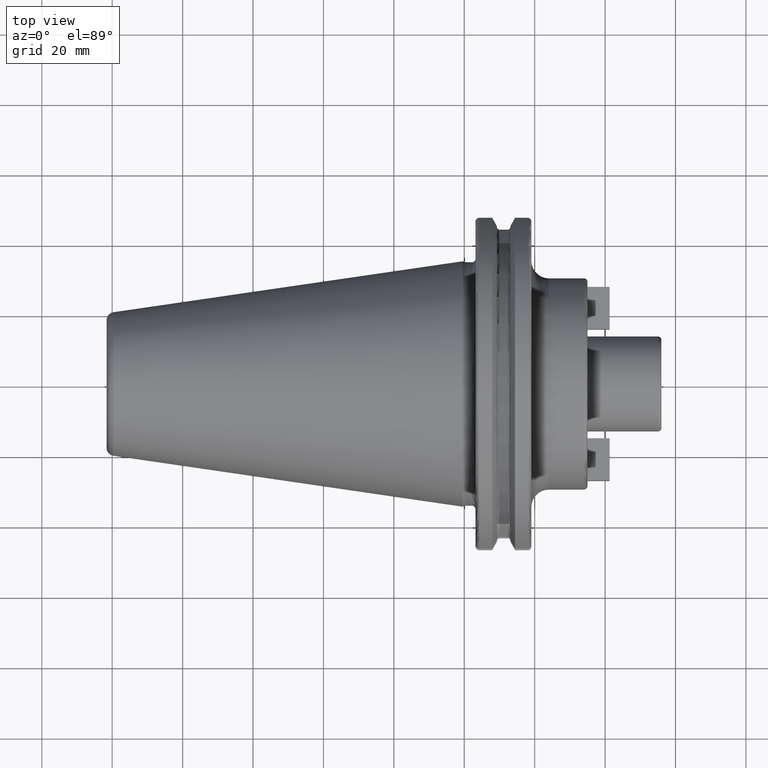
[diagram: clean part render]
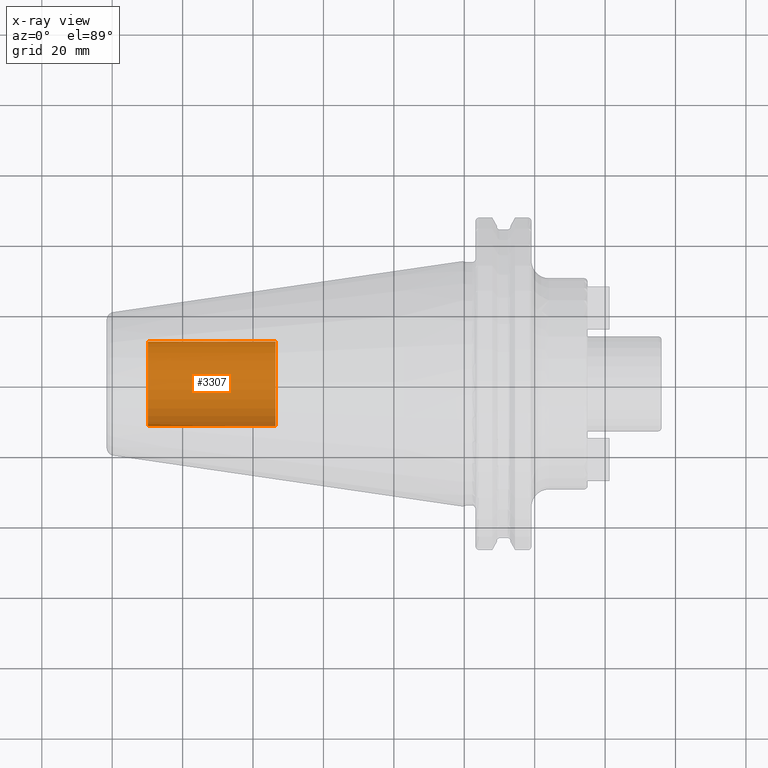
[diagram: x-ray — body ghosted, one internal face saturated and labeled with its STEP entity id]
A machine part, top view, then the same camera in x-ray: the body is ghosted and one INTERNAL B-rep face — a face not visible from any outside direction — is saturated and labeled: STEP entity #3307.
In plain terms, the highlighted cylindrical surface (partial cylindrical patch) has radius 12.0032 mm, axis along (1, 0, 0).
Its self-contained STEP definition (entity closure, byte-faithful):
#3242=CARTESIAN_POINT('',(-8.985E1,0.E0,0.E0));
#3243=DIRECTION('',(-1.E0,0.E0,0.E0));
#3244=DIRECTION('',(0.E0,1.E0,0.E0));
#3245=AXIS2_PLACEMENT_3D('',#3242,#3243,#3244);
#3247=DIRECTION('',(1.E0,0.E0,0.E0));
#3248=VECTOR('',#3247,3.625E1);
#3249=CARTESIAN_POINT('',(-8.985E1,-1.200325E1,0.E0));
#3250=LINE('',#3249,#3248);
#3256=DIRECTION('',(1.E0,0.E0,0.E0));
#3257=VECTOR('',#3256,3.625E1);
#3258=CARTESIAN_POINT('',(-8.985E1,1.200325E1,0.E0));
#3259=LINE('',#3258,#3257);
#3265=CARTESIAN_POINT('',(-5.36E1,0.E0,0.E0));
#3266=DIRECTION('',(1.E0,0.E0,0.E0));
#3267=DIRECTION('',(0.E0,-1.E0,0.E0));
#3268=AXIS2_PLACEMENT_3D('',#3265,#3266,#3267);
#3280=CARTESIAN_POINT('',(-8.985E1,1.200325E1,0.E0));
#3281=CARTESIAN_POINT('',(-8.985E1,-1.200325E1,0.E0));
#3282=VERTEX_POINT('',#3280);
#3283=VERTEX_POINT('',#3281);
#3284=CARTESIAN_POINT('',(-5.36E1,1.200325E1,0.E0));
#3285=CARTESIAN_POINT('',(-5.36E1,-1.200325E1,0.E0));
#3286=VERTEX_POINT('',#3284);
#3287=VERTEX_POINT('',#3285);
#3292=CARTESIAN_POINT('',(-8.985E1,0.E0,0.E0));
#3293=DIRECTION('',(1.E0,0.E0,0.E0));
#3294=DIRECTION('',(0.E0,1.E0,0.E0));
#3295=AXIS2_PLACEMENT_3D('',#3292,#3293,#3294);
#3296=CYLINDRICAL_SURFACE('',#3295,1.200325E1);
#3298=ORIENTED_EDGE('',*,*,#3297,.T.);
#3300=ORIENTED_EDGE('',*,*,#3299,.T.);
#3302=ORIENTED_EDGE('',*,*,#3301,.T.);
#3304=ORIENTED_EDGE('',*,*,#3303,.F.);
#3305=EDGE_LOOP('',(#3298,#3300,#3302,#3304));
#3306=FACE_OUTER_BOUND('',#3305,.F.);
#3307=ADVANCED_FACE('',(#3306),#3296,.T.);
#3246=CIRCLE('',#3245,1.200325E1);
#3269=CIRCLE('',#3268,1.200325E1);
#3297=EDGE_CURVE('',#3282,#3283,#3246,.T.);
#3299=EDGE_CURVE('',#3283,#3287,#3250,.T.);
#3301=EDGE_CURVE('',#3287,#3286,#3269,.T.);
#3303=EDGE_CURVE('',#3282,#3286,#3259,.T.);